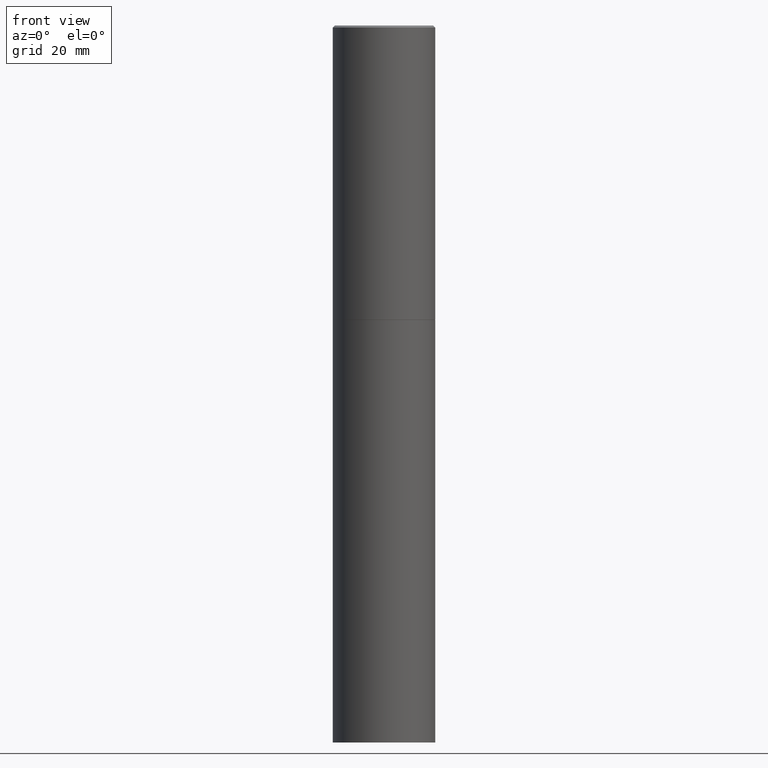
[diagram: clean part render]
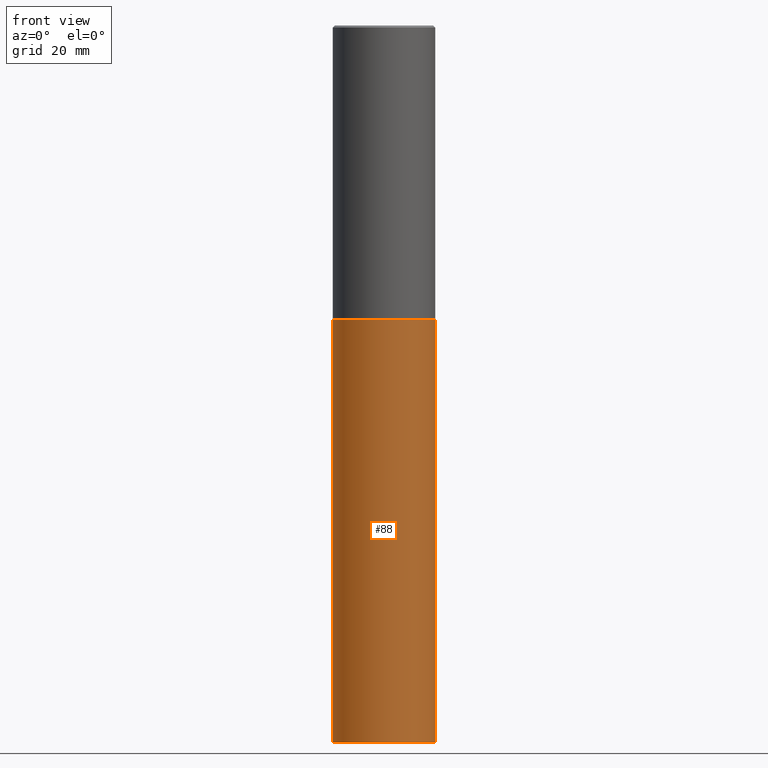
[diagram: same view with one face highlighted and labeled with its STEP entity id]
A machine part, front view. The second image highlights one B-rep face of the part: STEP entity #88.
In plain terms, the highlighted cylindrical surface (partial cylindrical patch) has radius 12.7 mm, axis along (-0, 0, 1).
Its self-contained STEP definition (entity closure, byte-faithful):
#5 = FACE_OUTER_BOUND ( 'NONE', #96, .T. ) ;
#6 = DIRECTION ( 'NONE',  ( 1.000000000000000000, -6.982962677686266711E-15, 4.876176775795935793E-29 ) ) ;
#9 = CARTESIAN_POINT ( 'NONE',  ( 0.5000000000000000000, -2.793185071074515204E-14, -7.000000000000000000 ) ) ;
#17 = ORIENTED_EDGE ( 'NONE', *, *, #203, .F. ) ;
#31 = ORIENTED_EDGE ( 'NONE', *, *, #42, .T. ) ;
#42 = EDGE_CURVE ( 'NONE', #249, #271, #148, .T. ) ;
#54 = EDGE_CURVE ( 'NONE', #92, #127, #245, .T. ) ;
#57 = CARTESIAN_POINT ( 'NONE',  ( 0.5000000000000000000, -1.352949018801717646E-14, -2.875000000000000000 ) ) ;
#83 = CARTESIAN_POINT ( 'NONE',  ( 1.711828164329595394E-28, -2.444036937190201868E-14, -7.000000000000000000 ) ) ;
#88 = ADVANCED_FACE ( 'NONE', ( #5 ), #90, .T. ) ;
#90 = CYLINDRICAL_SURFACE ( 'NONE', #276, 0.5000000000000000000 ) ;
#92 = VERTEX_POINT ( 'NONE', #315 ) ;
#93 = DIRECTION ( 'NONE',  ( -2.445468806185136597E-29, 3.491481338843145583E-15, 1.000000000000000000 ) ) ;
#96 = EDGE_LOOP ( 'NONE', ( #17, #31, #105, #246 ) ) ;
#100 = VECTOR ( 'NONE', #272, 39.37007874015748143 ) ;
#105 = ORIENTED_EDGE ( 'NONE', *, *, #344, .T. ) ;
#119 = DIRECTION ( 'NONE',  ( -2.445468806185136597E-29, 3.491481338843145583E-15, 1.000000000000000000 ) ) ;
#122 = DIRECTION ( 'NONE',  ( -2.445468806185136597E-29, 3.491481338843145583E-15, 1.000000000000000000 ) ) ;
#127 = VERTEX_POINT ( 'NONE', #57 ) ;
#148 = CIRCLE ( 'NONE', #182, 0.5000000000000000000 ) ;
#153 = DIRECTION ( 'NONE',  ( 1.000000000000000000, -6.982962677686270655E-15, 0.000000000000000000 ) ) ;
#175 = CARTESIAN_POINT ( 'NONE',  ( 7.030722817782267716E-29, -1.003800884917404311E-14, -2.875000000000000000 ) ) ;
#182 = AXIS2_PLACEMENT_3D ( 'NONE', #83, #122, #153 ) ;
#183 = CARTESIAN_POINT ( 'NONE',  ( -0.5000000000000000000, -1.368647543173752918E-14, -7.000000000000000000 ) ) ;
#189 = LINE ( 'NONE', #251, #100 ) ;
#203 = EDGE_CURVE ( 'NONE', #249, #92, #208, .T. ) ;
#208 = LINE ( 'NONE', #235, #325 ) ;
#235 = CARTESIAN_POINT ( 'NONE',  ( -0.5000000000000000000, 3.552713678800500929E-15, -2.459467545127452891E-29 ) ) ;
#245 = CIRCLE ( 'NONE', #319, 0.5000000000000000000 ) ;
#246 = ORIENTED_EDGE ( 'NONE', *, *, #54, .F. ) ;
#249 = VERTEX_POINT ( 'NONE', #183 ) ;
#251 = CARTESIAN_POINT ( 'NONE',  ( 0.5000000000000000000, -3.491481338843133355E-15, 2.438088387897967896E-29 ) ) ;
#271 = VERTEX_POINT ( 'NONE', #9 ) ;
#272 = DIRECTION ( 'NONE',  ( -2.445468806185136877E-29, 3.491481338843145188E-15, 1.000000000000000000 ) ) ;
#276 = AXIS2_PLACEMENT_3D ( 'NONE', #286, #93, #6 ) ;
#286 = CARTESIAN_POINT ( 'NONE',  ( 0.000000000000000000, 0.000000000000000000, 0.000000000000000000 ) ) ;
#315 = CARTESIAN_POINT ( 'NONE',  ( -0.5000000000000000000, -1.368647543173752918E-14, -2.875000000000000000 ) ) ;
#319 = AXIS2_PLACEMENT_3D ( 'NONE', #175, #119, #342 ) ;
#325 = VECTOR ( 'NONE', #346, 39.37007874015748143 ) ;
#342 = DIRECTION ( 'NONE',  ( 1.000000000000000000, -6.982962677686266711E-15, 0.000000000000000000 ) ) ;
#344 = EDGE_CURVE ( 'NONE', #271, #127, #189, .T. ) ;
#346 = DIRECTION ( 'NONE',  ( -2.445468806185136877E-29, 3.491481338843145188E-15, 1.000000000000000000 ) ) ;